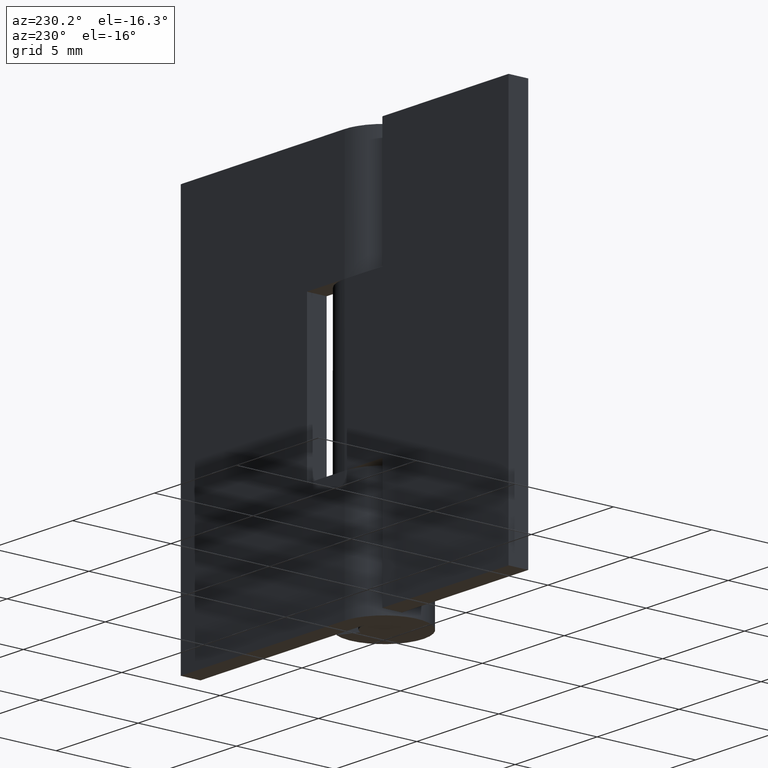
[diagram: clean part render]
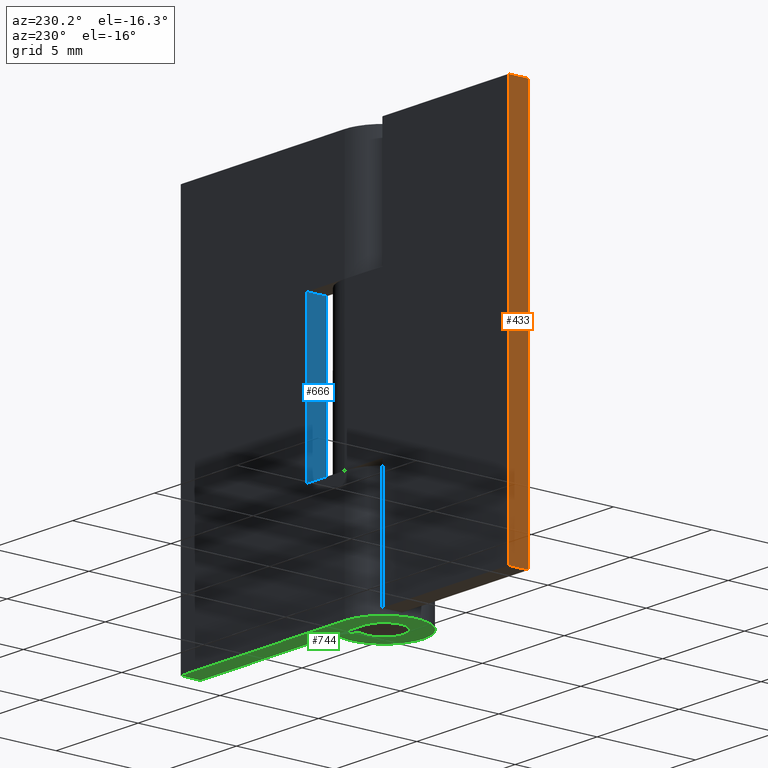
[diagram: same view with three faces highlighted in distinct colors, each labeled with its STEP entity id]
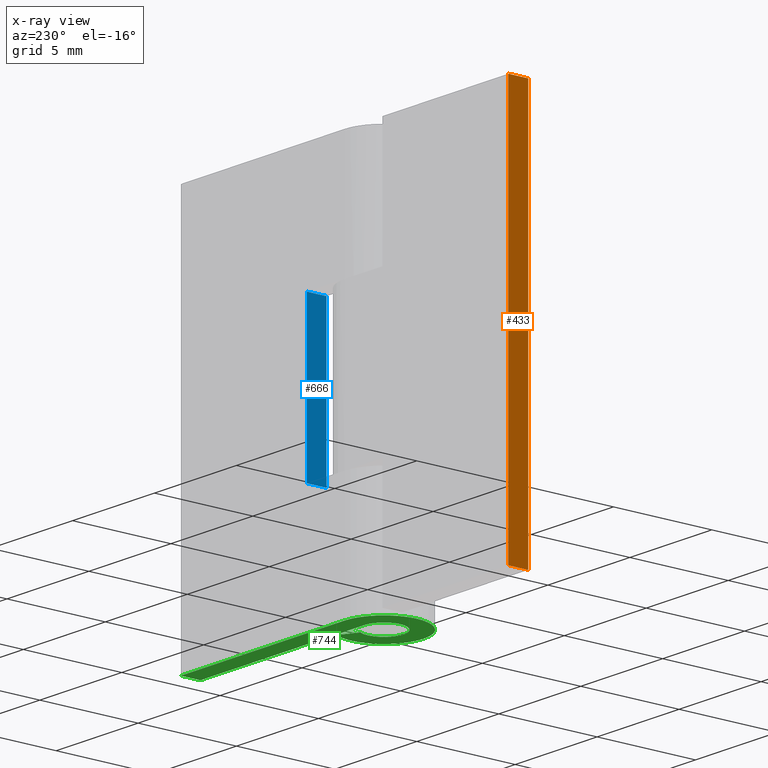
[diagram: x-ray of the same camera — body ghosted, the three highlighted faces saturated]
A machine part, auxiliary view with three faces highlighted in distinct colors.
The next image is the same camera in x-ray (body ghosted, the three faces saturated) — at least one of them is partly hidden behind the body in this view.
Their STEP definitions:

[orange] entity #433 — the highlighted face is a freeform B-spline surface patch.
#262=CARTESIAN_POINT('',(-10.0,1.0,0.0));
#263=VERTEX_POINT('',#262);
#269=CARTESIAN_POINT('',(-10.0,2.0,0.0));
#270=VERTEX_POINT('',#269);
#271=CARTESIAN_POINT('',(-10.0,2.0,0.0));
#272=CARTESIAN_POINT('',(-10.0,1.0,0.0));
#273=QUASI_UNIFORM_CURVE('',1,(#271,#272),.UNSPECIFIED.,.F.,.U.);
#274=EDGE_CURVE('',#270,#263,#273,.T.);
#289=CARTESIAN_POINT('',(-10.0,1.0,20.0));
#290=VERTEX_POINT('',#289);
#297=CARTESIAN_POINT('',(-10.0,2.0,20.0));
#298=VERTEX_POINT('',#297);
#304=CARTESIAN_POINT('',(-10.0,2.0,20.0));
#305=CARTESIAN_POINT('',(-10.0,1.0,20.0));
#306=QUASI_UNIFORM_CURVE('',1,(#304,#305),.UNSPECIFIED.,.F.,.U.);
#307=EDGE_CURVE('',#298,#290,#306,.T.);
#409=CARTESIAN_POINT('',(-10.0,1.0,20.0));
#410=CARTESIAN_POINT('',(-10.0,1.0,0.0));
#411=QUASI_UNIFORM_CURVE('',1,(#409,#410),.UNSPECIFIED.,.F.,.U.);
#412=EDGE_CURVE('',#290,#263,#411,.T.);
#418=CARTESIAN_POINT('',(-10.0,0.950050001938194,20.998999961236120));
#419=CARTESIAN_POINT('',(-10.0,0.950050001938194,-0.999000497677922));
#420=CARTESIAN_POINT('',(-10.0,2.049950024883896,20.998999961236120));
#421=CARTESIAN_POINT('',(-10.0,2.049950024883896,-0.999000497677922));
#422=B_SPLINE_SURFACE_WITH_KNOTS('',1,1,((#418,#420),(#419,#421)),.UNSPECIFIED.,.F.,.F.,.U.,(2,2),(2,2),(0.0,21.998000458914039),(0.041708334948495,0.958291687403247),.UNSPECIFIED.);
#423=ORIENTED_EDGE('',*,*,#274,.T.);
#424=ORIENTED_EDGE('',*,*,#412,.F.);
#425=ORIENTED_EDGE('',*,*,#307,.F.);
#426=CARTESIAN_POINT('',(-10.0,2.0,20.0));
#427=CARTESIAN_POINT('',(-10.0,2.0,0.0));
#428=QUASI_UNIFORM_CURVE('',1,(#426,#427),.UNSPECIFIED.,.F.,.U.);
#429=EDGE_CURVE('',#298,#270,#428,.T.);
#430=ORIENTED_EDGE('',*,*,#429,.T.);
#431=EDGE_LOOP('',(#423,#424,#425,#430));
#432=FACE_OUTER_BOUND('',#431,.T.);
#433=ADVANCED_FACE('',(#432),#422,.F.);

[blue] entity #666 — the highlighted face is a freeform B-spline surface patch.
#547=CARTESIAN_POINT('',(2.300003000000000,1.0,6.099997000000080));
#548=VERTEX_POINT('',#547);
#554=CARTESIAN_POINT('',(2.300003000000000,2.0,6.099997000000000));
#555=VERTEX_POINT('',#554);
#556=CARTESIAN_POINT('',(2.300003000000000,1.0,6.099997000000080));
#557=CARTESIAN_POINT('',(2.300003000000000,2.0,6.099997000000000));
#558=QUASI_UNIFORM_CURVE('',1,(#556,#557),.UNSPECIFIED.,.F.,.U.);
#559=EDGE_CURVE('',#548,#555,#558,.T.);
#574=CARTESIAN_POINT('',(2.300003000000000,2.0,13.900002999999900));
#575=VERTEX_POINT('',#574);
#583=CARTESIAN_POINT('',(2.300003000000000,1.0,13.900002999999900));
#584=VERTEX_POINT('',#583);
#585=CARTESIAN_POINT('',(2.300003000000000,1.0,13.900002999999900));
#586=CARTESIAN_POINT('',(2.300003000000000,2.0,13.900002999999900));
#587=QUASI_UNIFORM_CURVE('',1,(#585,#586),.UNSPECIFIED.,.F.,.U.);
#588=EDGE_CURVE('',#584,#575,#587,.T.);
#647=CARTESIAN_POINT('',(2.300003000000000,0.950050001938194,5.710386715417931));
#648=CARTESIAN_POINT('',(2.300003000000000,0.950050001938194,14.289613493794439));
#649=CARTESIAN_POINT('',(2.300003000000000,2.049950024883896,5.710386715417931));
#650=CARTESIAN_POINT('',(2.300003000000000,2.049950024883896,14.289613493794439));
#651=B_SPLINE_SURFACE_WITH_KNOTS('',1,1,((#647,#649),(#648,#650)),.UNSPECIFIED.,.F.,.F.,.U.,(2,2),(2,2),(0.0,8.579226778376505),(0.041708334948495,0.958291687403247),.UNSPECIFIED.);
#652=CARTESIAN_POINT('',(2.300003000000000,1.0,6.099997000000080));
#653=CARTESIAN_POINT('',(2.300003000000000,1.0,13.900002999999900));
#654=QUASI_UNIFORM_CURVE('',1,(#652,#653),.UNSPECIFIED.,.F.,.U.);
#655=EDGE_CURVE('',#548,#584,#654,.T.);
#656=ORIENTED_EDGE('',*,*,#655,.T.);
#657=ORIENTED_EDGE('',*,*,#588,.T.);
#658=CARTESIAN_POINT('',(2.300003000000000,2.0,6.099997000000000));
#659=CARTESIAN_POINT('',(2.300003000000000,2.0,13.900002999999900));
#660=QUASI_UNIFORM_CURVE('',1,(#658,#659),.UNSPECIFIED.,.F.,.U.);
#661=EDGE_CURVE('',#555,#575,#660,.T.);
#662=ORIENTED_EDGE('',*,*,#661,.F.);
#663=ORIENTED_EDGE('',*,*,#559,.F.);
#664=EDGE_LOOP('',(#656,#657,#662,#663));
#665=FACE_OUTER_BOUND('',#664,.T.);
#666=ADVANCED_FACE('',(#665),#651,.T.);

[green] entity #744 — the highlighted face is a freeform B-spline surface patch.
#667=CARTESIAN_POINT('',(-2.599322366427884,-2.199489972669553,0.0));
#668=CARTESIAN_POINT('',(10.599396606395590,-2.199489972669553,0.0));
#669=CARTESIAN_POINT('',(-2.599322366427884,2.199785350751693,0.0));
#670=CARTESIAN_POINT('',(10.599396606395590,2.199785350751693,0.0));
#671=B_SPLINE_SURFACE_WITH_KNOTS('',1,1,((#667,#669),(#668,#670)),.UNSPECIFIED.,.F.,.F.,.U.,(2,2),(2,2),(0.0,13.198718972823480),(0.0,4.399275323421245),.UNSPECIFIED.);
#672=CARTESIAN_POINT('',(10.0,2.0,0.0));
#673=VERTEX_POINT('',#672);
#674=CARTESIAN_POINT('',(-3.673819E-016,2.0,0.0));
#675=VERTEX_POINT('',#674);
#676=CARTESIAN_POINT('',(10.0,2.0,0.0));
#677=CARTESIAN_POINT('',(-3.673819E-016,2.0,0.0));
#678=QUASI_UNIFORM_CURVE('',1,(#676,#677),.UNSPECIFIED.,.F.,.U.);
#679=EDGE_CURVE('',#673,#675,#678,.T.);
#680=ORIENTED_EDGE('',*,*,#679,.F.);
#681=CARTESIAN_POINT('',(10.0,1.0,0.0));
#682=VERTEX_POINT('',#681);
#683=CARTESIAN_POINT('',(10.0,1.0,0.0));
#684=CARTESIAN_POINT('',(10.0,2.0,0.0));
#685=QUASI_UNIFORM_CURVE('',1,(#683,#684),.UNSPECIFIED.,.F.,.U.);
#686=EDGE_CURVE('',#682,#673,#685,.T.);
#687=ORIENTED_EDGE('',*,*,#686,.F.);
#688=CARTESIAN_POINT('',(-1.836910E-016,1.0,0.0));
#689=VERTEX_POINT('',#688);
#690=CARTESIAN_POINT('',(-1.836910E-016,1.0,0.0));
#691=CARTESIAN_POINT('',(10.0,1.0,0.0));
#692=QUASI_UNIFORM_CURVE('',1,(#690,#691),.UNSPECIFIED.,.F.,.U.);
#693=EDGE_CURVE('',#689,#682,#692,.T.);
#694=ORIENTED_EDGE('',*,*,#693,.F.);
#695=CARTESIAN_POINT('',(0.879985795339901,0.475000000000000,0.0));
#696=VERTEX_POINT('',#695);
#697=CARTESIAN_POINT('',(0.879985795339902,0.475000000000001,0.0));
#698=CARTESIAN_POINT('',(1.241772259107792,-0.195246208551571,0.0));
#699=CARTESIAN_POINT('',(0.691759022314385,-0.722128420051895,0.0));
#700=CARTESIAN_POINT('',(0.141745785520978,-1.249010631552219,0.0));
#701=CARTESIAN_POINT('',(-0.512347538297979,-0.858778201865884,0.0));
#702=CARTESIAN_POINT('',(-1.166440862116937,-0.468545772179549,0.0));
#703=CARTESIAN_POINT('',(-0.964048287656247,0.265727113910226,0.0));
#704=CARTESIAN_POINT('',(-0.761655713195557,1.0,0.0));
#705=CARTESIAN_POINT('',(0.0,1.0,0.0));
#713=(BOUNDED_CURVE()B_SPLINE_CURVE(2,(#697,#698,#699,#700,#701,#702,#703,#704,#705),.UNSPECIFIED.,.F.,.U.)B_SPLINE_CURVE_WITH_KNOTS((3,2,2,2,3),(0.0,0.250000000000000,0.500000000000000,0.750000000000000,1.0),.UNSPECIFIED.)CURVE()GEOMETRIC_REPRESENTATION_ITEM()RATIONAL_B_SPLINE_CURVE((1.0,0.795527219493534,1.0,0.795527219493534,1.0,0.795527219493534,1.0,0.795527219493534,1.0))REPRESENTATION_ITEM(''));
#714=EDGE_CURVE('',#696,#689,#713,.T.);
#715=ORIENTED_EDGE('',*,*,#714,.F.);
#716=CARTESIAN_POINT('',(1.759971590679805,0.950000000000000,0.0));
#717=VERTEX_POINT('',#716);
#718=CARTESIAN_POINT('',(1.759971590679805,0.950000000000000,0.0));
#719=CARTESIAN_POINT('',(0.879985795339901,0.475000000000000,0.0));
#720=QUASI_UNIFORM_CURVE('',1,(#718,#719),.UNSPECIFIED.,.F.,.U.);
#721=EDGE_CURVE('',#717,#696,#720,.T.);
#722=ORIENTED_EDGE('',*,*,#721,.F.);
#723=CARTESIAN_POINT('',(1.759971590679804,0.950000000000000,0.0));
#724=CARTESIAN_POINT('',(2.483544518215584,-0.390492417103144,0.0));
#725=CARTESIAN_POINT('',(1.383518044628769,-1.444256840103792,0.0));
#726=CARTESIAN_POINT('',(0.283491571041955,-2.498021263104437,0.0));
#727=CARTESIAN_POINT('',(-1.024695076595959,-1.717556403731767,0.0));
#728=CARTESIAN_POINT('',(-2.332881724233873,-0.937091544359097,0.0));
#729=CARTESIAN_POINT('',(-1.928096575312494,0.531454227820451,0.0));
#730=CARTESIAN_POINT('',(-1.523311426391115,2.000000000000000,0.0));
#731=CARTESIAN_POINT('',(0.0,2.0,0.0));
#739=(BOUNDED_CURVE()B_SPLINE_CURVE(2,(#723,#724,#725,#726,#727,#728,#729,#730,#731),.UNSPECIFIED.,.F.,.U.)B_SPLINE_CURVE_WITH_KNOTS((3,2,2,2,3),(0.0,0.250000000000000,0.500000000000000,0.750000000000000,1.0),.UNSPECIFIED.)CURVE()GEOMETRIC_REPRESENTATION_ITEM()RATIONAL_B_SPLINE_CURVE((1.0,0.795527219493534,1.0,0.795527219493534,1.0,0.795527219493534,1.0,0.795527219493534,1.0))REPRESENTATION_ITEM(''));
#740=EDGE_CURVE('',#717,#675,#739,.T.);
#741=ORIENTED_EDGE('',*,*,#740,.T.);
#742=EDGE_LOOP('',(#680,#687,#694,#715,#722,#741));
#743=FACE_OUTER_BOUND('',#742,.T.);
#744=ADVANCED_FACE('',(#743),#671,.F.);